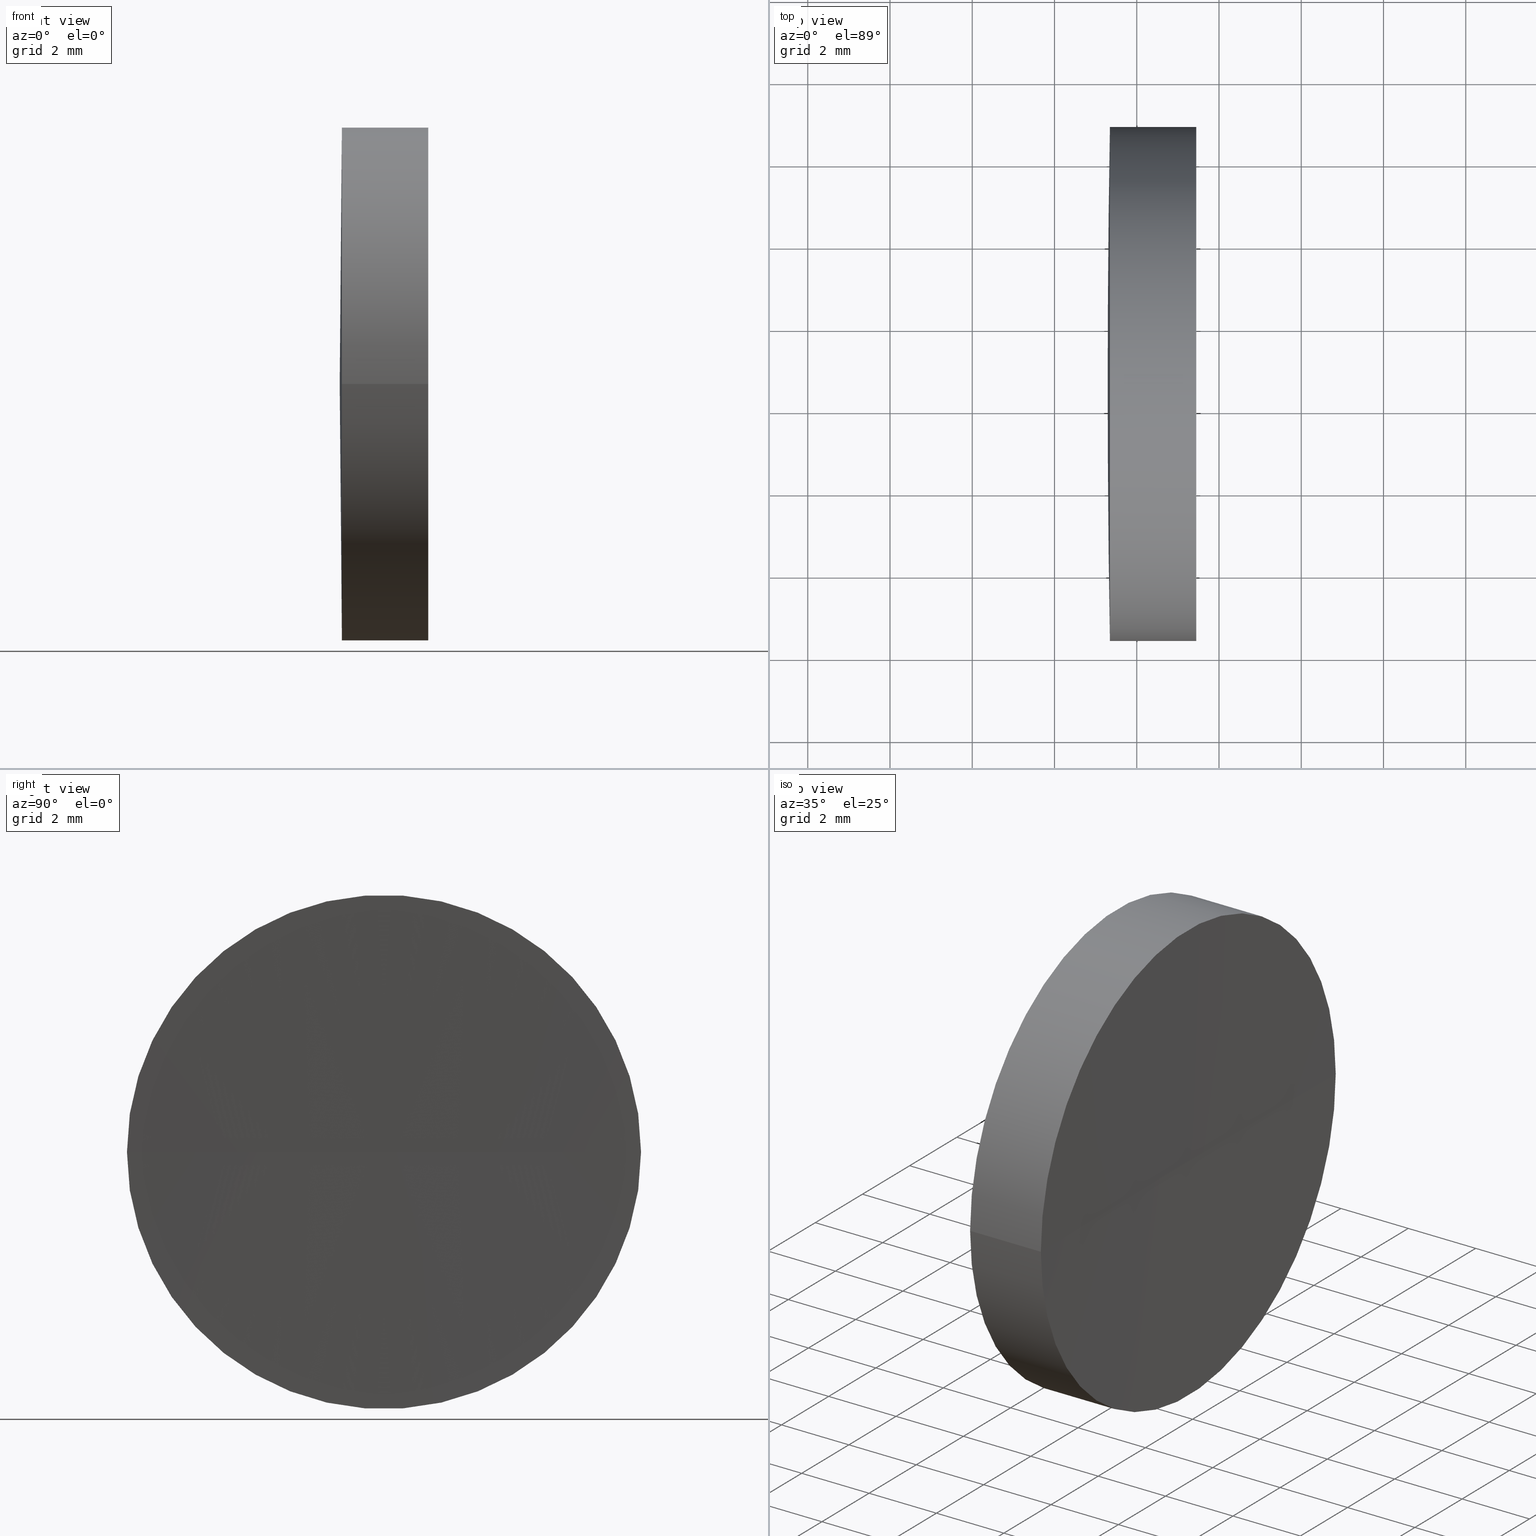
[diagram: canonical four-view strip — front | top / right | iso, engineering-drawing reading convention]
A machine part, canonical four-view strip (front | top / right | iso — engineering-drawing reading convention). The complete STEP part file that produces these views, byte-faithful:
ISO-10303-21;
HEADER;
FILE_DESCRIPTION (( 'STEP AP214' ),
    '1' );
FILE_NAME ('150004.STEP',
    '2019-07-04T02:51:24',
    ( '' ),
    ( '' ),
    'SwSTEP 2.0',
    'SolidWorks 2016',
    '' );
FILE_SCHEMA (( 'AUTOMOTIVE_DESIGN' ));
ENDSEC;

DATA;
#1 = CLOSED_SHELL ( 'NONE', ( #153, #39, #51, #165, #124, #134 ) ) ;
#2 = SPHERICAL_SURFACE ( 'NONE', #58, 362.9999999999999400 ) ;
#3 = DIRECTION ( 'NONE',  ( -1.000000000000000000, -6.937607244762875000E-016, -0.0000000000000000000 ) ) ;
#4 = SURFACE_STYLE_USAGE ( .BOTH. , #110 ) ;
#5 = FILL_AREA_STYLE ('',( #61 ) ) ;
#6 = ORIENTED_EDGE ( 'NONE', *, *, #145, .T. ) ;
#7 = DIRECTION ( 'NONE',  ( -8.496118506040342700E-032, 1.224646799147353200E-016, -1.000000000000000000 ) ) ;
#8 = SHAPE_DEFINITION_REPRESENTATION ( #29, #172 ) ;
#9 = AXIS2_PLACEMENT_3D ( 'NONE', #81, #12, #70 ) ;
#10 = AXIS2_PLACEMENT_3D ( 'NONE', #98, #169, #157 ) ;
#11 = VERTEX_POINT ( 'NONE', #174 ) ;
#12 = DIRECTION ( 'NONE',  ( -0.0000000000000000000, 0.0000000000000000000, 1.000000000000000000 ) ) ;
#13 = SURFACE_STYLE_FILL_AREA ( #55 ) ;
#14 = EDGE_LOOP ( 'NONE', ( #65, #156, #69, #95 ) ) ;
#15 = ORIENTED_EDGE ( 'NONE', *, *, #50, .F. ) ;
#16 = CIRCLE ( 'NONE', #152, 363.0000000000000600 ) ;
#17 = PRODUCT_DEFINITION_FORMATION_WITH_SPECIFIED_SOURCE ( '�κ�', '', #93, .NOT_KNOWN. ) ;
#18 =( GEOMETRIC_REPRESENTATION_CONTEXT ( 3 ) GLOBAL_UNCERTAINTY_ASSIGNED_CONTEXT ( ( #162 ) ) GLOBAL_UNIT_ASSIGNED_CONTEXT ( ( #40, #154, #142 ) ) REPRESENTATION_CONTEXT ( 'NONE', 'WORKASPACE' ) );
#19 = CARTESIAN_POINT ( 'NONE',  ( 424.2936778931471100, 32.60842023547017000, 0.0000000000000000000 ) ) ;
#20 = DIRECTION ( 'NONE',  ( -1.000000000000000000, -6.937607244762875000E-016, -0.0000000000000000000 ) ) ;
#21 = SPHERICAL_SURFACE ( 'NONE', #105, 362.9999999999999400 ) ;
#22 = FACE_OUTER_BOUND ( 'NONE', #119, .T. ) ;
#23 = FACE_OUTER_BOUND ( 'NONE', #84, .T. ) ;
#24 =( LENGTH_UNIT ( ) NAMED_UNIT ( * ) SI_UNIT ( .MILLI., .METRE. ) );
#25 = ORIENTED_EDGE ( 'NONE', *, *, #50, .T. ) ;
#26 = CIRCLE ( 'NONE', #9, 362.9999999999998900 ) ;
#27 = ORIENTED_EDGE ( 'NONE', *, *, #60, .F. ) ;
#28 = AXIS2_PLACEMENT_3D ( 'NONE', #112, #77, #36 ) ;
#29 = PRODUCT_DEFINITION_SHAPE ( 'NONE', 'NONE',  #82 ) ;
#30 = EDGE_LOOP ( 'NONE', ( #15, #163, #52 ) ) ;
#31 = FACE_OUTER_BOUND ( 'NONE', #30, .T. ) ;
#32 = DIRECTION ( 'NONE',  ( 0.0000000000000000000, -0.0000000000000000000, 1.000000000000000000 ) ) ;
#33 = CARTESIAN_POINT ( 'NONE',  ( 426.3936778931471300, 32.60842023547012800, 0.0000000000000000000 ) ) ;
#34 = CARTESIAN_POINT ( 'NONE',  ( 57.97224564898157700, 38.85842023547017700, 7.654042494670977300E-016 ) ) ;
#35 = EDGE_LOOP ( 'NONE', ( #115, #25, #191 ) ) ;
#36 = DIRECTION ( 'NONE',  ( 1.110223024625153800E-015, -1.000000000000000000, 0.0000000000000000000 ) ) ;
#37 = CARTESIAN_POINT ( 'NONE',  ( 61.34748697774439600, 32.60842023547016300, 0.0000000000000000000 ) ) ;
#38 = FACE_OUTER_BOUND ( 'NONE', #189, .T. ) ;
#39 = ADVANCED_FACE ( 'NONE', ( #22 ), #171, .T. ) ;
#40 =( LENGTH_UNIT ( ) NAMED_UNIT ( * ) SI_UNIT ( .MILLI., .METRE. ) );
#41 = AXIS2_PLACEMENT_3D ( 'NONE', #143, #53, #83 ) ;
#42 = ORIENTED_EDGE ( 'NONE', *, *, #73, .T. ) ;
#43 = AXIS2_PLACEMENT_3D ( 'NONE', #139, #104, #67 ) ;
#44 = SPHERICAL_SURFACE ( 'NONE', #159, 363.0000000000000600 ) ;
#45 = VERTEX_POINT ( 'NONE', #144 ) ;
#46 = EDGE_CURVE ( 'NONE', #88, #128, #48, .T. ) ;
#47 = CARTESIAN_POINT ( 'NONE',  ( 63.39367789314709300, 32.60842023546990000, 0.0000000000000000000 ) ) ;
#48 = CIRCLE ( 'NONE', #114, 363.0000000000000600 ) ;
#49 = DIRECTION ( 'NONE',  ( -0.0000000000000000000, 0.0000000000000000000, -1.000000000000000000 ) ) ;
#50 = EDGE_CURVE ( 'NONE', #161, #128, #16, .T. ) ;
#51 = ADVANCED_FACE ( 'NONE', ( #122 ), #44, .F. ) ;
#52 = ORIENTED_EDGE ( 'NONE', *, *, #46, .T. ) ;
#53 = DIRECTION ( 'NONE',  ( -1.000000000000000000, -6.937607244762875000E-016, -0.0000000000000000000 ) ) ;
#54 = APPLICATION_CONTEXT ( 'automotive_design' ) ;
#55 = FILL_AREA_STYLE ('',( #68 ) ) ;
#56 = AXIS2_PLACEMENT_3D ( 'NONE', #135, #96, #179 ) ;
#57 = SURFACE_STYLE_FILL_AREA ( #5 ) ;
#58 = AXIS2_PLACEMENT_3D ( 'NONE', #19, #49, #113 ) ;
#59 = EDGE_CURVE ( 'NONE', #88, #11, #80, .T. ) ;
#60 = EDGE_CURVE ( 'NONE', #45, #11, #146, .T. ) ;
#61 = FILL_AREA_STYLE_COLOUR ( '', #130 ) ;
#62 = CIRCLE ( 'NONE', #160, 6.250000000000078200 ) ;
#63 = CARTESIAN_POINT ( 'NONE',  ( 63.44748697774435400, 32.60842023547017000, 0.0000000000000000000 ) ) ;
#64 = DIRECTION ( 'NONE',  ( -7.646164081440470900E-016, 1.000000000000000000, 0.0000000000000000000 ) ) ;
#65 = ORIENTED_EDGE ( 'NONE', *, *, #59, .F. ) ;
#66 = CARTESIAN_POINT ( 'NONE',  ( 63.44748697774435400, 32.60842023547017000, 0.0000000000000000000 ) ) ;
#67 = DIRECTION ( 'NONE',  ( -7.646164081440470900E-016, 1.000000000000000000, 0.0000000000000000000 ) ) ;
#68 = FILL_AREA_STYLE_COLOUR ( '', #102 ) ;
#69 = ORIENTED_EDGE ( 'NONE', *, *, #185, .T. ) ;
#70 = DIRECTION ( 'NONE',  ( 1.000000000000000000, 0.0000000000000000000, 0.0000000000000000000 ) ) ;
#71 = UNCERTAINTY_MEASURE_WITH_UNIT (LENGTH_MEASURE( 1.000000000000000100E-005 ), #24, 'distance_accuracy_value', 'NONE');
#72 = PRESENTATION_STYLE_ASSIGNMENT (( #155 ) ) ;
#73 = EDGE_CURVE ( 'NONE', #11, #45, #187, .T. ) ;
#74 = ORIENTED_EDGE ( 'NONE', *, *, #190, .F. ) ;
#75 = VECTOR ( 'NONE', #101, 1000.000000000000000 ) ;
#76 = EDGE_CURVE ( 'NONE', #88, #161, #62, .T. ) ;
#77 = DIRECTION ( 'NONE',  ( -1.000000000000000000, -6.937607244762875000E-016, -0.0000000000000000000 ) ) ;
#78 = ORIENTED_EDGE ( 'NONE', *, *, #60, .T. ) ;
#79 =( NAMED_UNIT ( * ) PLANE_ANGLE_UNIT ( ) SI_UNIT ( $, .RADIAN. ) );
#80 = LINE ( 'NONE', #34, #100 ) ;
#81 = CARTESIAN_POINT ( 'NONE',  ( 424.2936778931471100, 32.60842023547017000, 0.0000000000000000000 ) ) ;
#82 = PRODUCT_DEFINITION ( 'δ֪', '', #17, #116 ) ;
#83 = DIRECTION ( 'NONE',  ( 1.110223024625153800E-015, -1.000000000000000000, 0.0000000000000000000 ) ) ;
#84 = EDGE_LOOP ( 'NONE', ( #42, #136, #74 ) ) ;
#85 = PRESENTATION_STYLE_ASSIGNMENT (( #4 ) ) ;
#86 = LINE ( 'NONE', #170, #75 ) ;
#87 =( GEOMETRIC_REPRESENTATION_CONTEXT ( 3 ) GLOBAL_UNCERTAINTY_ASSIGNED_CONTEXT ( ( #133 ) ) GLOBAL_UNIT_ASSIGNED_CONTEXT ( ( #166, #131, #123 ) ) REPRESENTATION_CONTEXT ( 'NONE', 'WORKASPACE' ) );
#88 = VERTEX_POINT ( 'NONE', #90 ) ;
#89 = EDGE_CURVE ( 'NONE', #45, #177, #164, .T. ) ;
#90 = CARTESIAN_POINT ( 'NONE',  ( 63.44748697774434000, 38.85842023547196800, 0.0000000000000000000 ) ) ;
#91 = DIRECTION ( 'NONE',  ( 1.110223024625164800E-015, -1.000000000000000000, 0.0000000000000000000 ) ) ;
#92 = DIRECTION ( 'NONE',  ( -0.0000000000000000000, 0.0000000000000000000, -1.000000000000000000 ) ) ;
#93 = PRODUCT ( '150004', '150004', '', ( #141 ) ) ;
#94 = CARTESIAN_POINT ( 'NONE',  ( 61.34748697774439600, 32.60842023547016300, 0.0000000000000000000 ) ) ;
#95 = ORIENTED_EDGE ( 'NONE', *, *, #73, .F. ) ;
#96 = DIRECTION ( 'NONE',  ( -8.496118506040342700E-032, 1.224646799147353200E-016, -1.000000000000000000 ) ) ;
#97 = ORIENTED_EDGE ( 'NONE', *, *, #59, .T. ) ;
#98 = CARTESIAN_POINT ( 'NONE',  ( 0.0000000000000000000, 0.0000000000000000000, 0.0000000000000000000 ) ) ;
#99 = APPLICATION_PROTOCOL_DEFINITION ( 'draft international standard', 'automotive_design', 1998, #186 ) ;
#100 = VECTOR ( 'NONE', #132, 1000.000000000000000 ) ;
#101 = DIRECTION ( 'NONE',  ( -1.000000000000000000, -6.937607244762875000E-016, -0.0000000000000000000 ) ) ;
#102 = COLOUR_RGB ( '',1.000000000000000000, 1.000000000000000000, 1.000000000000000000 ) ;
#103 = ORIENTED_EDGE ( 'NONE', *, *, #190, .T. ) ;
#104 = DIRECTION ( 'NONE',  ( 0.0000000000000000000, 0.0000000000000000000, -1.000000000000000000 ) ) ;
#105 = AXIS2_PLACEMENT_3D ( 'NONE', #137, #92, #148 ) ;
#106 = MANIFOLD_SOLID_BREP ( '��ת1', #1 ) ;
#107 = ORIENTED_EDGE ( 'NONE', *, *, #89, .F. ) ;
#108 = STYLED_ITEM ( 'NONE', ( #72 ), #172 ) ;
#109 = DIRECTION ( 'NONE',  ( 0.0000000000000000000, -1.000000000000000000, 0.0000000000000000000 ) ) ;
#110 = SURFACE_SIDE_STYLE ('',( #57 ) ) ;
#111 = AXIS2_PLACEMENT_3D ( 'NONE', #37, #181, #150 ) ;
#112 = CARTESIAN_POINT ( 'NONE',  ( 57.97224564898158400, 32.60842023547016300, 0.0000000000000000000 ) ) ;
#113 = DIRECTION ( 'NONE',  ( -7.646164081440473900E-016, 1.000000000000000000, 0.0000000000000000000 ) ) ;
#114 = AXIS2_PLACEMENT_3D ( 'NONE', #182, #32, #125 ) ;
#115 = ORIENTED_EDGE ( 'NONE', *, *, #145, .F. ) ;
#116 = PRODUCT_DEFINITION_CONTEXT ( 'detailed design', #54, 'design' ) ;
#117 = MECHANICAL_DESIGN_GEOMETRIC_PRESENTATION_REPRESENTATION (  '', ( #108 ), #188 ) ;
#118 = SPHERICAL_SURFACE ( 'NONE', #43, 363.0000000000000600 ) ;
#119 = EDGE_LOOP ( 'NONE', ( #6, #97, #27, #167 ) ) ;
#120 = AXIS2_PLACEMENT_3D ( 'NONE', #94, #147, #91 ) ;
#121 = DIRECTION ( 'NONE',  ( 0.0000000000000000000, 1.000000000000000000, 1.224646799147353200E-016 ) ) ;
#122 = FACE_OUTER_BOUND ( 'NONE', #35, .T. ) ;
#123 =( NAMED_UNIT ( * ) SI_UNIT ( $, .STERADIAN. ) SOLID_ANGLE_UNIT ( ) );
#124 = ADVANCED_FACE ( 'NONE', ( #175 ), #158, .T. ) ;
#125 = DIRECTION ( 'NONE',  ( 1.000000000000000000, 0.0000000000000000000, 0.0000000000000000000 ) ) ;
#126 = APPLICATION_PROTOCOL_DEFINITION ( 'draft international standard', 'automotive_design', 1998, #54 ) ;
#127 = CARTESIAN_POINT ( 'NONE',  ( 61.29367789314715500, 32.60842023546994300, 0.0000000000000000000 ) ) ;
#128 = VERTEX_POINT ( 'NONE', #47 ) ;
#129 = PRESENTATION_LAYER_ASSIGNMENT (  '', '', ( #108 ) ) ;
#130 = COLOUR_RGB ( '',1.000000000000000000, 1.000000000000000000, 1.000000000000000000 ) ;
#131 =( NAMED_UNIT ( * ) PLANE_ANGLE_UNIT ( ) SI_UNIT ( $, .RADIAN. ) );
#132 = DIRECTION ( 'NONE',  ( -1.000000000000000000, -6.937607244762875000E-016, -0.0000000000000000000 ) ) ;
#133 = UNCERTAINTY_MEASURE_WITH_UNIT (LENGTH_MEASURE( 1.000000000000000100E-005 ), #166, 'distance_accuracy_value', 'NONE');
#134 = ADVANCED_FACE ( 'NONE', ( #38 ), #21, .T. ) ;
#135 = CARTESIAN_POINT ( 'NONE',  ( 424.2936778931471100, 32.60842023547017000, 0.0000000000000000000 ) ) ;
#136 = ORIENTED_EDGE ( 'NONE', *, *, #89, .T. ) ;
#137 = CARTESIAN_POINT ( 'NONE',  ( 424.2936778931471100, 32.60842023547017000, 0.0000000000000000000 ) ) ;
#138 = CARTESIAN_POINT ( 'NONE',  ( 63.44748697774434000, 26.35842023546807800, -7.654042494673167400E-016 ) ) ;
#139 = CARTESIAN_POINT ( 'NONE',  ( 426.3936778931471300, 32.60842023547012800, 0.0000000000000000000 ) ) ;
#140 =( NAMED_UNIT ( * ) SI_UNIT ( $, .STERADIAN. ) SOLID_ANGLE_UNIT ( ) );
#141 = PRODUCT_CONTEXT ( 'NONE', #186, 'mechanical' ) ;
#142 =( NAMED_UNIT ( * ) SI_UNIT ( $, .STERADIAN. ) SOLID_ANGLE_UNIT ( ) );
#143 = CARTESIAN_POINT ( 'NONE',  ( 57.97224564898158400, 32.60842023547016300, 0.0000000000000000000 ) ) ;
#144 = CARTESIAN_POINT ( 'NONE',  ( 61.34748697774440300, 26.35842023547020900, 0.0000000000000000000 ) ) ;
#145 = EDGE_CURVE ( 'NONE', #161, #88, #151, .T. ) ;
#146 = CIRCLE ( 'NONE', #111, 6.249999999999953800 ) ;
#147 = DIRECTION ( 'NONE',  ( -1.000000000000000000, -6.937607244762875000E-016, -0.0000000000000000000 ) ) ;
#148 = DIRECTION ( 'NONE',  ( -7.646164081440473900E-016, 1.000000000000000000, 0.0000000000000000000 ) ) ;
#149 = CARTESIAN_POINT ( 'NONE',  ( 426.3936778931471300, 32.60842023547012800, 0.0000000000000000000 ) ) ;
#150 = DIRECTION ( 'NONE',  ( 1.110223024625164800E-015, -1.000000000000000000, 0.0000000000000000000 ) ) ;
#151 = CIRCLE ( 'NONE', #178, 6.250000000000078200 ) ;
#152 = AXIS2_PLACEMENT_3D ( 'NONE', #149, #7, #121 ) ;
#153 = ADVANCED_FACE ( 'NONE', ( #23 ), #2, .T. ) ;
#154 =( NAMED_UNIT ( * ) PLANE_ANGLE_UNIT ( ) SI_UNIT ( $, .RADIAN. ) );
#155 = SURFACE_STYLE_USAGE ( .BOTH. , #173 ) ;
#156 = ORIENTED_EDGE ( 'NONE', *, *, #76, .T. ) ;
#157 = DIRECTION ( 'NONE',  ( 1.000000000000000000, 0.0000000000000000000, 0.0000000000000000000 ) ) ;
#158 = CYLINDRICAL_SURFACE ( 'NONE', #28, 6.250000000000016000 ) ;
#159 = AXIS2_PLACEMENT_3D ( 'NONE', #33, #183, #64 ) ;
#160 = AXIS2_PLACEMENT_3D ( 'NONE', #66, #20, #184 ) ;
#161 = VERTEX_POINT ( 'NONE', #138 ) ;
#162 = UNCERTAINTY_MEASURE_WITH_UNIT (LENGTH_MEASURE( 1.000000000000000100E-005 ), #40, 'distance_accuracy_value', 'NONE');
#163 = ORIENTED_EDGE ( 'NONE', *, *, #76, .F. ) ;
#164 = CIRCLE ( 'NONE', #56, 362.9999999999999400 ) ;
#165 = ADVANCED_FACE ( 'NONE', ( #31 ), #118, .F. ) ;
#166 =( LENGTH_UNIT ( ) NAMED_UNIT ( * ) SI_UNIT ( .MILLI., .METRE. ) );
#167 = ORIENTED_EDGE ( 'NONE', *, *, #185, .F. ) ;
#168 = MECHANICAL_DESIGN_GEOMETRIC_PRESENTATION_REPRESENTATION (  '', ( #180 ), #87 ) ;
#169 = DIRECTION ( 'NONE',  ( 0.0000000000000000000, 0.0000000000000000000, 1.000000000000000000 ) ) ;
#170 = CARTESIAN_POINT ( 'NONE',  ( 57.97224564898159100, 26.35842023547014900, 0.0000000000000000000 ) ) ;
#171 = CYLINDRICAL_SURFACE ( 'NONE', #41, 6.250000000000016000 ) ;
#172 = ADVANCED_BREP_SHAPE_REPRESENTATION ( '150004', ( #106, #10 ), #18 ) ;
#173 = SURFACE_SIDE_STYLE ('',( #13 ) ) ;
#174 = CARTESIAN_POINT ( 'NONE',  ( 61.34748697774439600, 38.85842023547012000, 7.654042494670939900E-016 ) ) ;
#175 = FACE_OUTER_BOUND ( 'NONE', #14, .T. ) ;
#176 = PRODUCT_RELATED_PRODUCT_CATEGORY ( 'part', '', ( #93 ) ) ;
#177 = VERTEX_POINT ( 'NONE', #127 ) ;
#178 = AXIS2_PLACEMENT_3D ( 'NONE', #63, #3, #109 ) ;
#179 = DIRECTION ( 'NONE',  ( 0.0000000000000000000, 1.000000000000000000, 1.224646799147353200E-016 ) ) ;
#180 = STYLED_ITEM ( 'NONE', ( #85 ), #106 ) ;
#181 = DIRECTION ( 'NONE',  ( -1.000000000000000000, -6.937607244762875000E-016, -0.0000000000000000000 ) ) ;
#182 = CARTESIAN_POINT ( 'NONE',  ( 426.3936778931471300, 32.60842023547012800, 0.0000000000000000000 ) ) ;
#183 = DIRECTION ( 'NONE',  ( 0.0000000000000000000, 0.0000000000000000000, -1.000000000000000000 ) ) ;
#184 = DIRECTION ( 'NONE',  ( 0.0000000000000000000, -1.000000000000000000, 0.0000000000000000000 ) ) ;
#185 = EDGE_CURVE ( 'NONE', #161, #45, #86, .T. ) ;
#186 = APPLICATION_CONTEXT ( 'automotive_design' ) ;
#187 = CIRCLE ( 'NONE', #120, 6.249999999999953800 ) ;
#188 =( GEOMETRIC_REPRESENTATION_CONTEXT ( 3 ) GLOBAL_UNCERTAINTY_ASSIGNED_CONTEXT ( ( #71 ) ) GLOBAL_UNIT_ASSIGNED_CONTEXT ( ( #24, #79, #140 ) ) REPRESENTATION_CONTEXT ( 'NONE', 'WORKASPACE' ) );
#189 = EDGE_LOOP ( 'NONE', ( #107, #78, #103 ) ) ;
#190 = EDGE_CURVE ( 'NONE', #11, #177, #26, .T. ) ;
#191 = ORIENTED_EDGE ( 'NONE', *, *, #46, .F. ) ;
#192 = PRESENTATION_LAYER_ASSIGNMENT (  '', '', ( #180 ) ) ;
ENDSEC;
END-ISO-10303-21;
